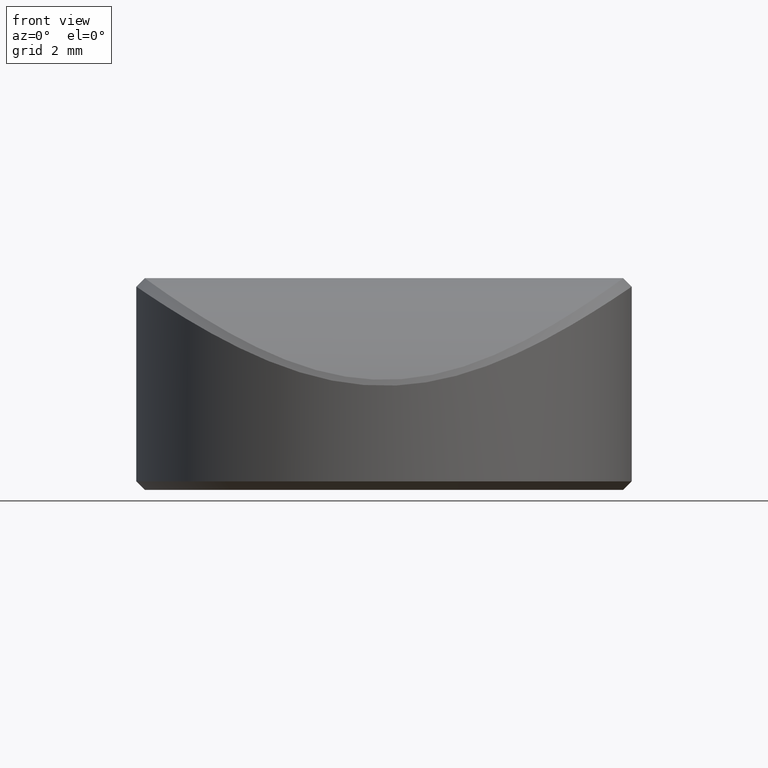
[diagram: clean part render]
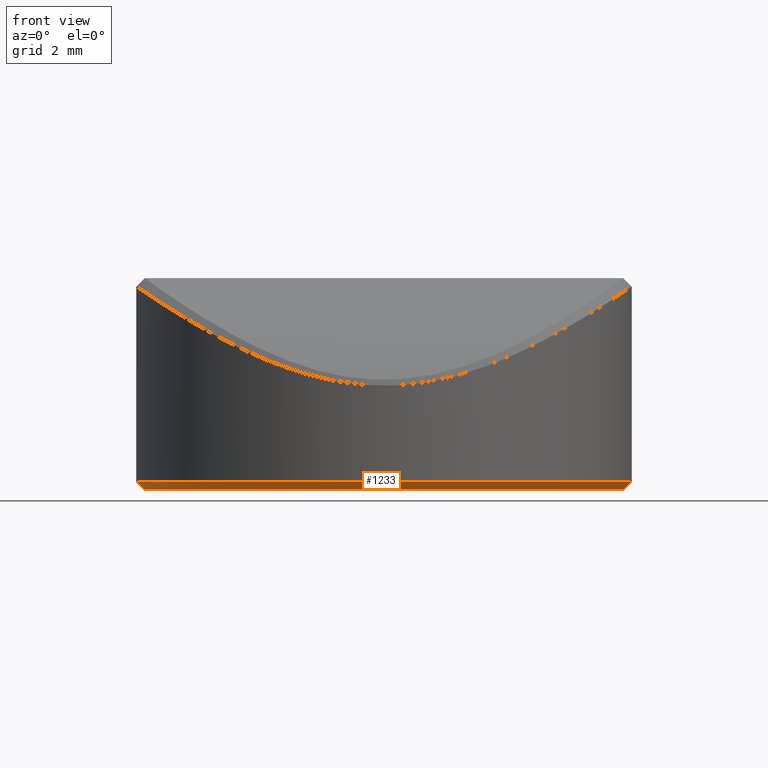
[diagram: same view with one face highlighted and labeled with its STEP entity id]
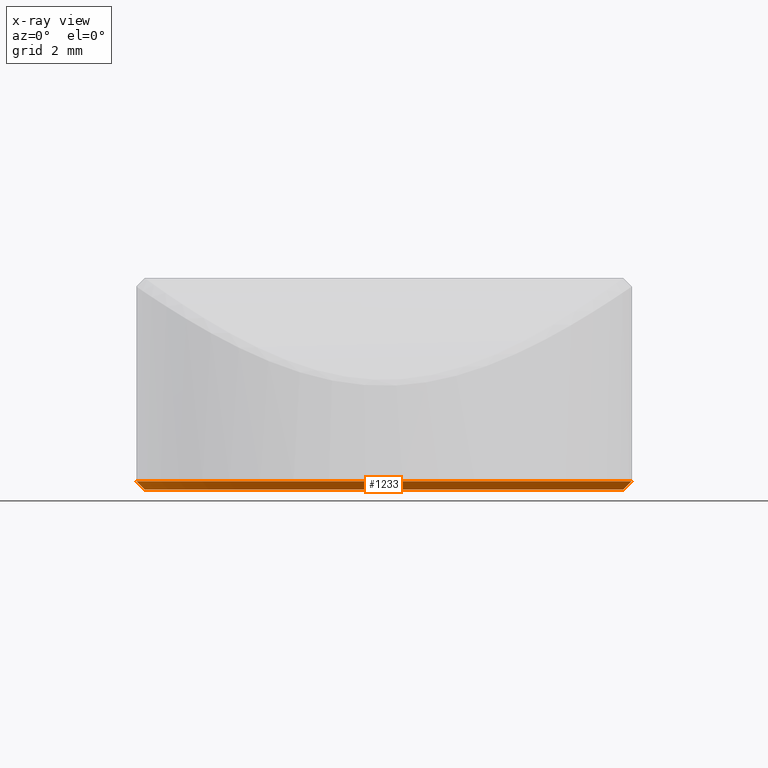
[diagram: x-ray of the same camera — body ghosted, the highlighted face saturated]
A machine part, front view. The second image highlights one B-rep face of the part: STEP entity #1233.
The next image is the same camera in x-ray: the body ghosted, the highlighted face saturated — about 0% of this face is hidden behind the body in this view.
In plain terms, the highlighted conical surface has half-angle 45 deg.
Its self-contained STEP definition (entity closure, byte-faithful):
#34 = AXIS2_PLACEMENT_3D ( 'NONE', #1259, #1305, #1461 ) ;
#45 = DIRECTION ( 'NONE',  ( -0.7071067811865489050, 8.659560562354951347E-17, 0.7071067811865460184 ) ) ;
#58 = VERTEX_POINT ( 'NONE', #418 ) ;
#81 = CARTESIAN_POINT ( 'NONE',  ( -5.849999999999999645, 7.164183775012015436E-16, 0.1999999999999979294 ) ) ;
#154 = VECTOR ( 'NONE', #45, 1000.000000000000114 ) ;
#169 = ORIENTED_EDGE ( 'NONE', *, *, #1654, .T. ) ;
#228 = DIRECTION ( 'NONE',  ( 1.000000000000000000, 0.000000000000000000, 0.000000000000000000 ) ) ;
#230 = ORIENTED_EDGE ( 'NONE', *, *, #2361, .F. ) ;
#277 = CARTESIAN_POINT ( 'NONE',  ( 0.000000000000000000, 0.000000000000000000, 0.000000000000000000 ) ) ;
#343 = DIRECTION ( 'NONE',  ( -0.000000000000000000, -0.000000000000000000, 1.000000000000000000 ) ) ;
#365 = CARTESIAN_POINT ( 'NONE',  ( 5.849999999999999645, 0.000000000000000000, 0.1999999999999979294 ) ) ;
#403 = DIRECTION ( 'NONE',  ( 0.7071067811865489050, 0.000000000000000000, 0.7071067811865460184 ) ) ;
#418 = CARTESIAN_POINT ( 'NONE',  ( 5.849999999999999645, 7.164183775012015436E-16, 0.1999999999999979294 ) ) ;
#439 = LINE ( 'NONE', #81, #154 ) ;
#570 = AXIS2_PLACEMENT_3D ( 'NONE', #277, #1866, #228 ) ;
#599 = VERTEX_POINT ( 'NONE', #717 ) ;
#717 = CARTESIAN_POINT ( 'NONE',  ( -5.650000000000000355, 7.041719095097280880E-16, 0.000000000000000000 ) ) ;
#793 = EDGE_LOOP ( 'NONE', ( #230, #2124, #169, #1522 ) ) ;
#877 = DIRECTION ( 'NONE',  ( 1.000000000000000000, 0.000000000000000000, 0.000000000000000000 ) ) ;
#882 = EDGE_CURVE ( 'NONE', #1324, #599, #1600, .T. ) ;
#1030 = CARTESIAN_POINT ( 'NONE',  ( -5.849999999999999645, 0.000000000000000000, 0.1999999999999979294 ) ) ;
#1205 = VERTEX_POINT ( 'NONE', #1030 ) ;
#1233 = ADVANCED_FACE ( 'NONE', ( #1982 ), #2069, .T. ) ;
#1259 = CARTESIAN_POINT ( 'NONE',  ( 0.000000000000000000, 0.000000000000000000, 0.1999999999999979294 ) ) ;
#1305 = DIRECTION ( 'NONE',  ( -0.000000000000000000, -0.000000000000000000, 1.000000000000000000 ) ) ;
#1324 = VERTEX_POINT ( 'NONE', #1773 ) ;
#1461 = DIRECTION ( 'NONE',  ( 1.000000000000000000, 0.000000000000000000, 0.000000000000000000 ) ) ;
#1481 = EDGE_CURVE ( 'NONE', #1205, #58, #1874, .T. ) ;
#1522 = ORIENTED_EDGE ( 'NONE', *, *, #1481, .F. ) ;
#1600 = CIRCLE ( 'NONE', #570, 5.650000000000000355 ) ;
#1654 = EDGE_CURVE ( 'NONE', #1324, #58, #2221, .T. ) ;
#1773 = CARTESIAN_POINT ( 'NONE',  ( 5.650000000000000355, 0.000000000000000000, 0.000000000000000000 ) ) ;
#1866 = DIRECTION ( 'NONE',  ( -0.000000000000000000, -0.000000000000000000, -1.000000000000000000 ) ) ;
#1874 = CIRCLE ( 'NONE', #34, 5.849999999999999645 ) ;
#1982 = FACE_OUTER_BOUND ( 'NONE', #793, .T. ) ;
#1991 = VECTOR ( 'NONE', #403, 1000.000000000000114 ) ;
#2069 = CONICAL_SURFACE ( 'NONE', #2367, 5.849999999999999645, 0.7853981633974503884 ) ;
#2124 = ORIENTED_EDGE ( 'NONE', *, *, #882, .F. ) ;
#2221 = LINE ( 'NONE', #365, #1991 ) ;
#2349 = CARTESIAN_POINT ( 'NONE',  ( 0.000000000000000000, 0.000000000000000000, 0.1999999999999979294 ) ) ;
#2361 = EDGE_CURVE ( 'NONE', #599, #1205, #439, .T. ) ;
#2367 = AXIS2_PLACEMENT_3D ( 'NONE', #2349, #343, #877 ) ;